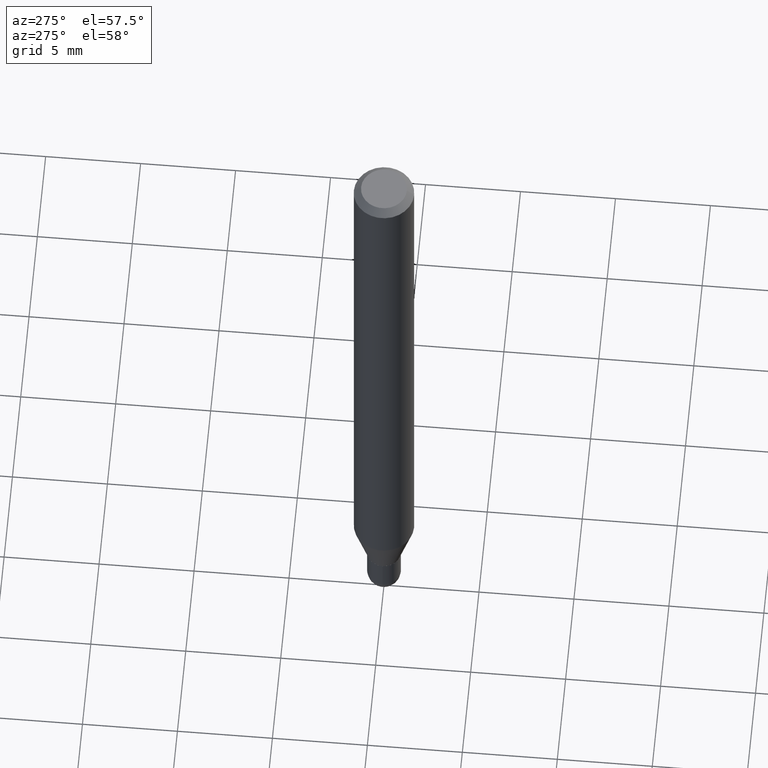
[diagram: clean part render]
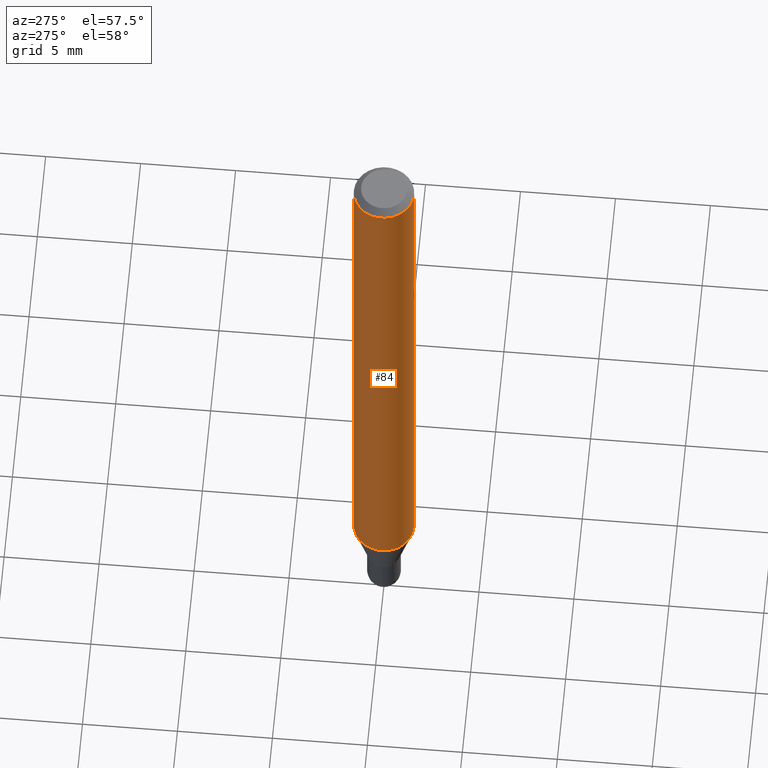
[diagram: same view with one face highlighted and labeled with its STEP entity id]
A machine part, auxiliary view. The second image highlights one B-rep face of the part: STEP entity #84.
In plain terms, the highlighted cylindrical surface (edge-blend (fillet) strip) has radius 1.5875 mm, axis along (-0, 0, 1).
Its self-contained STEP definition (entity closure, byte-faithful):
#7 = DIRECTION ( 'NONE',  ( -6.982962677686265922E-15, -1.000000000000000000, 3.491503968680831010E-15 ) ) ;
#24 = CARTESIAN_POINT ( 'NONE',  ( -4.364351673553602629E-16, -0.06250000000000455191, -1.292368602791858612 ) ) ;
#30 = CIRCLE ( 'NONE', #319, 0.06250000000000000000 ) ;
#71 = CARTESIAN_POINT ( 'NONE',  ( -4.364351673553912750E-16, -0.06250000000000005551, -0.01499999999999979128 ) ) ;
#84 = ADVANCED_FACE ( 'NONE', ( #164 ), #509, .T. ) ;
#88 = AXIS2_PLACEMENT_3D ( 'NONE', #322, #355, #7 ) ;
#89 = AXIS2_PLACEMENT_3D ( 'NONE', #460, #140, #300 ) ;
#93 = VERTEX_POINT ( 'NONE', #24 ) ;
#105 = LINE ( 'NONE', #288, #204 ) ;
#138 = VERTEX_POINT ( 'NONE', #378 ) ;
#140 = DIRECTION ( 'NONE',  ( -2.445453003853940643E-29, 3.491503968680831010E-15, 1.000000000000000000 ) ) ;
#164 = FACE_OUTER_BOUND ( 'NONE', #332, .T. ) ;
#204 = VECTOR ( 'NONE', #430, 39.37007874015748143 ) ;
#208 = EDGE_CURVE ( 'NONE', #93, #459, #105, .T. ) ;
#229 = DIRECTION ( 'NONE',  ( -2.445453003853940643E-29, 3.491503968680831010E-15, 1.000000000000000000 ) ) ;
#246 = ORIENTED_EDGE ( 'NONE', *, *, #208, .T. ) ;
#288 = CARTESIAN_POINT ( 'NONE',  ( -4.364351673553916201E-16, -0.06250000000000000000, 2.182189980425519382E-16 ) ) ;
#292 = ORIENTED_EDGE ( 'NONE', *, *, #363, .T. ) ;
#298 = VERTEX_POINT ( 'NONE', #383 ) ;
#300 = DIRECTION ( 'NONE',  ( -6.982962677686265922E-15, -1.000000000000000000, 4.370956789862821150E-15 ) ) ;
#319 = AXIS2_PLACEMENT_3D ( 'NONE', #346, #505, #345 ) ;
#322 = CARTESIAN_POINT ( 'NONE',  ( 0.000000000000000000, 0.000000000000000000, 0.000000000000000000 ) ) ;
#332 = EDGE_LOOP ( 'NONE', ( #381, #292, #246, #404 ) ) ;
#345 = DIRECTION ( 'NONE',  ( -6.982962677686265922E-15, -1.000000000000000000, 3.483106191921935554E-15 ) ) ;
#346 = CARTESIAN_POINT ( 'NONE',  ( 3.668179505780913400E-31, -5.237255953021249622E-17, -0.01500000000000000812 ) ) ;
#355 = DIRECTION ( 'NONE',  ( -2.445453003853940643E-29, 3.491503968680831010E-15, 1.000000000000000000 ) ) ;
#363 = EDGE_CURVE ( 'NONE', #298, #93, #506, .T. ) ;
#378 = CARTESIAN_POINT ( 'NONE',  ( 4.440892098500943678E-16, 0.06249999999999995143, -0.01500000000000022669 ) ) ;
#381 = ORIENTED_EDGE ( 'NONE', *, *, #411, .F. ) ;
#383 = CARTESIAN_POINT ( 'NONE',  ( 4.440892098500939734E-16, 0.06249999999999544809, -1.292368602791859056 ) ) ;
#391 = CARTESIAN_POINT ( 'NONE',  ( 4.440892098500625669E-16, 0.06250000000000000000, -2.182189980425519382E-16 ) ) ;
#394 = LINE ( 'NONE', #391, #499 ) ;
#404 = ORIENTED_EDGE ( 'NONE', *, *, #462, .F. ) ;
#411 = EDGE_CURVE ( 'NONE', #298, #138, #394, .T. ) ;
#430 = DIRECTION ( 'NONE',  ( -2.445453003853940643E-29, 3.491503968680831010E-15, 1.000000000000000000 ) ) ;
#459 = VERTEX_POINT ( 'NONE', #71 ) ;
#460 = CARTESIAN_POINT ( 'NONE',  ( 3.160426681783871860E-29, -4.512310105646275216E-15, -1.292368602791858834 ) ) ;
#462 = EDGE_CURVE ( 'NONE', #138, #459, #30, .T. ) ;
#499 = VECTOR ( 'NONE', #229, 39.37007874015748143 ) ;
#505 = DIRECTION ( 'NONE',  ( -2.445453003853940643E-29, 3.491503968680831010E-15, 1.000000000000000000 ) ) ;
#506 = CIRCLE ( 'NONE', #89, 0.06250000000000000000 ) ;
#509 = CYLINDRICAL_SURFACE ( 'NONE', #88, 0.06250000000000000000 ) ;